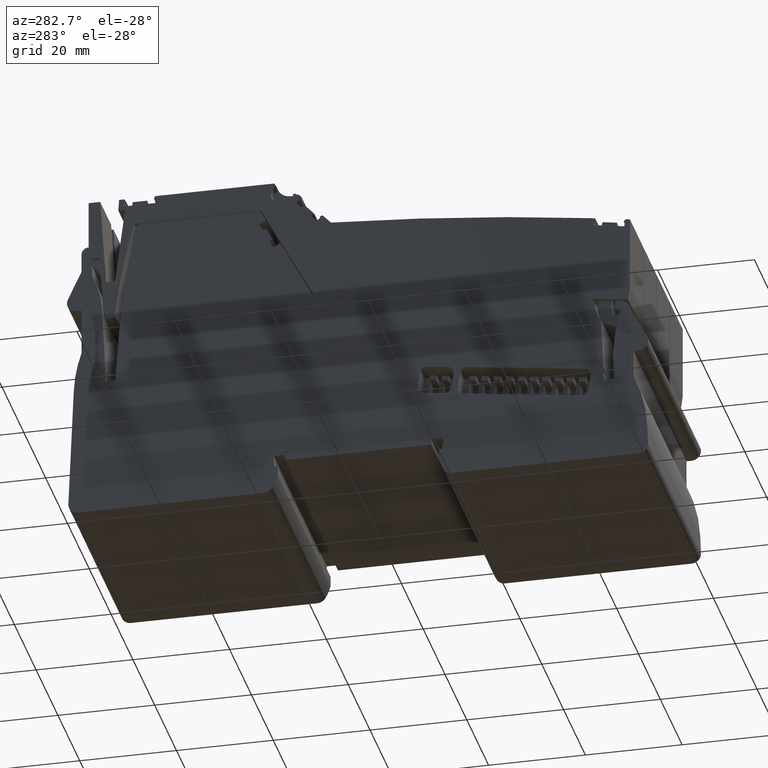
[diagram: clean part render]
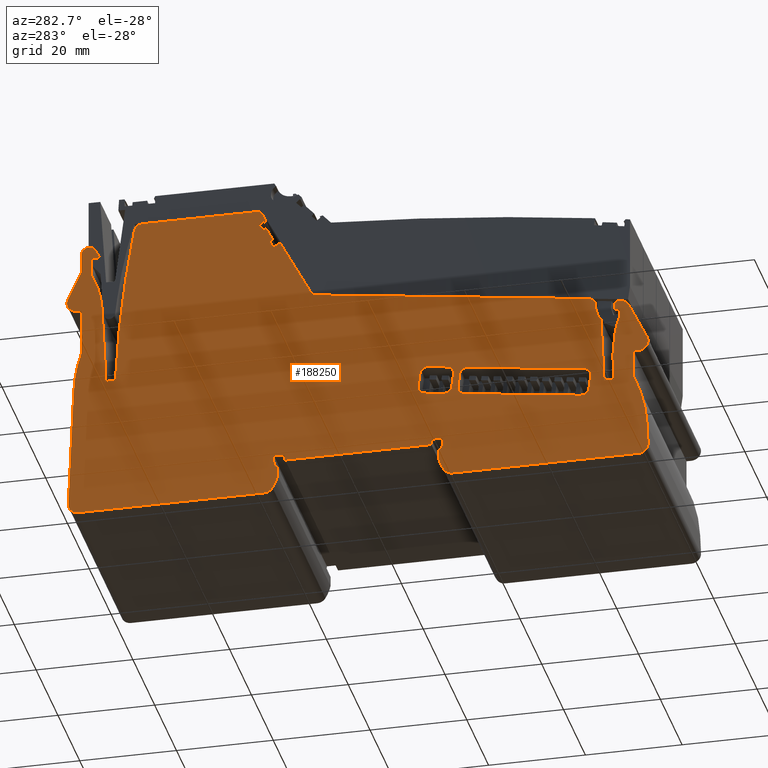
[diagram: same view with one face highlighted and labeled with its STEP entity id]
A machine part, auxiliary view. The second image highlights one B-rep face of the part: STEP entity #188250.
In plain terms, the highlighted planar face has unit normal (-1, 0, 0).
Its self-contained STEP definition (entity closure, byte-faithful):
#180370=CARTESIAN_POINT('',(207.521137303987,-49.7075260538664,-12.15));
#180380=DIRECTION('',(0.,0.,-1.));
#180390=DIRECTION('',(-1.,1.05193631583234E-14,0.));
#180400=AXIS2_PLACEMENT_3D('',#180370,#180380,#180390);
#180410=PLANE('',#180400);
#180420=CARTESIAN_POINT('',(0.,-73.3773829456078,-12.15));
#180430=DIRECTION('',(0.99144486137381,0.130526192220052,0.));
#180440=VECTOR('',#180430,1.);
#180450=LINE('',#180420,#180440);
#180460=CARTESIAN_POINT('',(190.538323415351,-48.2925367818617,-12.15));
#180470=VERTEX_POINT('',#180460);
#180480=CARTESIAN_POINT('',(214.630433546734,-45.1207503109144,-12.15));
#180490=VERTEX_POINT('',#180480);
#180500=EDGE_CURVE('',#180470,#180490,#180450,.T.);
#180510=ORIENTED_EDGE('',*,*,#180500,.T.);
#180520=CARTESIAN_POINT('',(190.342534127021,-46.805369489801,-12.15));
#180530=DIRECTION('',(0.,0.,-1.));
#180540=DIRECTION('',(-1.,0.,0.));
#180550=AXIS2_PLACEMENT_3D('',#180520,#180530,#180540);
#180560=CIRCLE('',#180550,1.5);
#180570=CARTESIAN_POINT('',(188.85536683496,-47.0011587781311,-12.15));
#180580=VERTEX_POINT('',#180570);
#180590=EDGE_CURVE('',#180470,#180580,#180560,.T.);
#180600=ORIENTED_EDGE('',*,*,#180590,.F.);
#180610=CARTESIAN_POINT('',(182.667546892317,0.,-12.15));
#180620=DIRECTION('',(0.130526192220058,-0.99144486137381,0.));
#180630=VECTOR('',#180620,1.);
#180640=LINE('',#180610,#180630);
#180650=CARTESIAN_POINT('',(188.4637882583,-44.0268241940091,-12.15));
#180660=VERTEX_POINT('',#180650);
#180670=EDGE_CURVE('',#180660,#180580,#180640,.T.);
#180680=ORIENTED_EDGE('',*,*,#180670,.T.);
#180690=CARTESIAN_POINT('',(189.95095555036,-43.831034905679,-12.15));
#180700=DIRECTION('',(0.,0.,-1.));
#180710=DIRECTION('',(-1.,0.,0.));
#180720=AXIS2_PLACEMENT_3D('',#180690,#180700,#180710);
#180730=CIRCLE('',#180720,1.5);
#180740=CARTESIAN_POINT('',(189.75516626203,-42.3438676136182,-12.15));
#180750=VERTEX_POINT('',#180740);
#180760=EDGE_CURVE('',#180660,#180750,#180730,.T.);
#180770=ORIENTED_EDGE('',*,*,#180760,.F.);
#180780=CARTESIAN_POINT('',(0.,-67.3256091821255,-12.15));
#180790=DIRECTION('',(-0.991444861373811,-0.130526192220049,0.));
#180800=VECTOR('',#180790,1.);
#180810=LINE('',#180780,#180800);
#180820=CARTESIAN_POINT('',(213.847276393414,-39.1720811426711,-12.15));
#180830=VERTEX_POINT('',#180820);
#180840=EDGE_CURVE('',#180830,#180750,#180810,.T.);
#180850=ORIENTED_EDGE('',*,*,#180840,.T.);
#180860=CARTESIAN_POINT('',(214.043065681744,-40.6592484347318,-12.15));
#180870=DIRECTION('',(0.,0.,-1.));
#180880=DIRECTION('',(-1.,0.,0.));
#180890=AXIS2_PLACEMENT_3D('',#180860,#180870,#180880);
#180900=CIRCLE('',#180890,1.5);
#180910=CARTESIAN_POINT('',(215.530232973805,-40.4634591464017,-12.15));
#180920=VERTEX_POINT('',#180910);
#180930=EDGE_CURVE('',#180830,#180920,#180900,.T.);
#180940=ORIENTED_EDGE('',*,*,#180930,.F.);
#180950=CARTESIAN_POINT('',(210.203117516155,0.,-12.15));
#180960=DIRECTION('',(-0.130526192220057,0.99144486137381,0.));
#180970=VECTOR('',#180960,1.);
#180980=LINE('',#180950,#180970);
#180990=CARTESIAN_POINT('',(215.921811550465,-43.4377937305236,-12.15));
#181000=VERTEX_POINT('',#180990);
#181010=EDGE_CURVE('',#181000,#180920,#180980,.T.);
#181020=ORIENTED_EDGE('',*,*,#181010,.T.);
#181030=CARTESIAN_POINT('',(214.434644258404,-43.6335830188537,-12.15));
#181040=DIRECTION('',(0.,0.,-1.));
#181050=DIRECTION('',(-1.,0.,0.));
#181060=AXIS2_PLACEMENT_3D('',#181030,#181040,#181050);
#181070=CIRCLE('',#181060,1.5);
#181080=EDGE_CURVE('',#181000,#180490,#181070,.T.);
#181090=ORIENTED_EDGE('',*,*,#181080,.F.);
#181100=EDGE_LOOP('',(#181090,#181020,#180940,#180850,#180770,#180680,
#180600,#180510));
#181110=FACE_BOUND('',#181100,.T.);
#181120=CARTESIAN_POINT('',(0.,-73.3773829456074,-12.15));
#181130=DIRECTION('',(0.99144486137381,0.130526192220051,0.));
#181140=VECTOR('',#181130,1.);
#181150=LINE('',#181120,#181140);
#181160=CARTESIAN_POINT('',(218.893646450642,-44.5594876843682,-12.15));
#181170=VERTEX_POINT('',#181160);
#181180=CARTESIAN_POINT('',(222.859425896137,-44.037382915488,-12.15));
#181190=VERTEX_POINT('',#181180);
#181200=EDGE_CURVE('',#181170,#181190,#181150,.T.);
#181210=ORIENTED_EDGE('',*,*,#181200,.T.);
#181220=CARTESIAN_POINT('',(218.697857162312,-43.0723203923074,-12.15));
#181230=DIRECTION('',(0.,0.,-1.));
#181240=DIRECTION('',(-1.,-1.05193631583234E-14,0.));
#181250=AXIS2_PLACEMENT_3D('',#181220,#181230,#181240);
#181260=CIRCLE('',#181250,1.5);
#181270=CARTESIAN_POINT('',(217.210689870251,-43.2681096806375,-12.15));
#181280=VERTEX_POINT('',#181270);
#181290=EDGE_CURVE('',#181170,#181280,#181260,.T.);
#181300=ORIENTED_EDGE('',*,*,#181290,.F.);
#181310=CARTESIAN_POINT('',(211.514335164909,0.,-12.15));
#181320=DIRECTION('',(0.130526192220052,-0.99144486137381,0.));
#181330=VECTOR('',#181320,1.);
#181340=LINE('',#181310,#181330);
#181350=CARTESIAN_POINT('',(216.819111293591,-40.2937750965157,-12.15));
#181360=VERTEX_POINT('',#181350);
#181370=EDGE_CURVE('',#181360,#181280,#181340,.T.);
#181380=ORIENTED_EDGE('',*,*,#181370,.T.);
#181390=CARTESIAN_POINT('',(218.306278585651,-40.0979858081856,-12.15));
#181400=DIRECTION('',(0.,0.,1.));
#181410=DIRECTION('',(1.,1.05193631583234E-14,0.));
#181420=AXIS2_PLACEMENT_3D('',#181390,#181400,#181410);
#181430=CIRCLE('',#181420,1.5);
#181440=CARTESIAN_POINT('',(218.110489297321,-38.6108185161249,-12.15));
#181450=VERTEX_POINT('',#181440);
#181460=EDGE_CURVE('',#181450,#181360,#181430,.T.);
#181470=ORIENTED_EDGE('',*,*,#181460,.T.);
#181480=CARTESIAN_POINT('',(0.,-67.3256091821258,-12.15));
#181490=DIRECTION('',(-0.991444861373811,-0.13052619222005,0.));
#181500=VECTOR('',#181490,1.);
#181510=LINE('',#181480,#181500);
#181520=CARTESIAN_POINT('',(222.076268742817,-38.0887137472446,-12.15));
#181530=VERTEX_POINT('',#181520);
#181540=EDGE_CURVE('',#181530,#181450,#181510,.T.);
#181550=ORIENTED_EDGE('',*,*,#181540,.T.);
#181560=CARTESIAN_POINT('',(222.272058031147,-39.5758810393054,-12.15));
#181570=DIRECTION('',(0.,0.,-1.));
#181580=DIRECTION('',(-1.,-1.05193631583234E-14,0.));
#181590=AXIS2_PLACEMENT_3D('',#181560,#181570,#181580);
#181600=CIRCLE('',#181590,1.5);
#181610=CARTESIAN_POINT('',(223.759225323207,-39.3800917509753,-12.15));
#181620=VERTEX_POINT('',#181610);
#181630=EDGE_CURVE('',#181530,#181620,#181600,.T.);
#181640=ORIENTED_EDGE('',*,*,#181630,.F.);
#181650=CARTESIAN_POINT('',(218.574737888971,0.,-12.15));
#181660=DIRECTION('',(-0.130526192220051,0.99144486137381,0.));
#181670=VECTOR('',#181660,1.);
#181680=LINE('',#181650,#181670);
#181690=CARTESIAN_POINT('',(224.150803899868,-42.3544263350972,-12.15));
#181700=VERTEX_POINT('',#181690);
#181710=EDGE_CURVE('',#181700,#181620,#181680,.T.);
#181720=ORIENTED_EDGE('',*,*,#181710,.T.);
#181730=CARTESIAN_POINT('',(222.663636607807,-42.5502156234272,-12.15));
#181740=DIRECTION('',(0.,0.,-1.));
#181750=DIRECTION('',(-1.,-1.05193631583234E-14,0.));
#181760=AXIS2_PLACEMENT_3D('',#181730,#181740,#181750);
#181770=CIRCLE('',#181760,1.5);
#181780=EDGE_CURVE('',#181700,#181190,#181770,.T.);
#181790=ORIENTED_EDGE('',*,*,#181780,.F.);
#181800=EDGE_LOOP('',(#181790,#181720,#181640,#181550,#181470,#181380,
#181300,#181210));
#181810=FACE_BOUND('',#181800,.T.);
#181820=CARTESIAN_POINT('',(182.478620208859,-36.561018757538,-12.15));
#181830=DIRECTION('',(1.05193631583234E-14,1.,0.));
#181840=VECTOR('',#181830,1.);
#181850=LINE('',#181820,#181840);
#181860=CARTESIAN_POINT('',(182.478620208859,-31.1739986024552,-12.15));
#181870=VERTEX_POINT('',#181860);
#181880=CARTESIAN_POINT('',(182.478620208859,-29.5542780967958,-12.15));
#181890=VERTEX_POINT('',#181880);
#181900=EDGE_CURVE('',#181870,#181890,#181850,.T.);
#181910=ORIENTED_EDGE('',*,*,#181900,.F.);
#181920=CARTESIAN_POINT('',(217.456642799386,-29.5542780967962,-12.15));
#181930=DIRECTION('',(1.,-1.05193631583234E-14,0.));
#181940=VECTOR('',#181930,1.);
#181950=LINE('',#181920,#181940);
#181960=CARTESIAN_POINT('',(183.478620208859,-29.5542780967958,-12.15));
#181970=VERTEX_POINT('',#181960);
#181980=EDGE_CURVE('',#181890,#181970,#181950,.T.);
#181990=ORIENTED_EDGE('',*,*,#181980,.F.);
#182000=CARTESIAN_POINT('',(183.478620208859,-36.561018757538,-12.15));
#182010=DIRECTION('',(1.05193631583234E-14,1.,0.));
#182020=VECTOR('',#182010,1.);
#182030=LINE('',#182000,#182020);
#182040=CARTESIAN_POINT('',(183.478620208859,-28.3478039592243,-12.15));
#182050=VERTEX_POINT('',#182040);
#182060=EDGE_CURVE('',#181970,#182050,#182030,.T.);
#182070=ORIENTED_EDGE('',*,*,#182060,.F.);
#182080=CARTESIAN_POINT('',(182.678620208859,-28.3478039592243,-12.15));
#182090=DIRECTION('',(0.,0.,1.));
#182100=DIRECTION('',(1.,-1.05193631583234E-14,0.));
#182110=AXIS2_PLACEMENT_3D('',#182080,#182090,#182100);
#182120=CIRCLE('',#182110,0.8);
#182130=CARTESIAN_POINT('',(182.574199255083,-27.5546480701252,-12.15));
#182140=VERTEX_POINT('',#182130);
#182150=EDGE_CURVE('',#182050,#182140,#182120,.T.);
#182160=ORIENTED_EDGE('',*,*,#182150,.F.);
#182170=CARTESIAN_POINT('',(217.456642799386,-22.9622872555671,-12.15));
#182180=DIRECTION('',(-0.991444861373813,-0.130526192220033,0.));
#182190=VECTOR('',#182180,1.);
#182200=LINE('',#182170,#182190);
#182210=CARTESIAN_POINT('',(182.452304728309,-27.5706957890172,-12.15));
#182220=VERTEX_POINT('',#182210);
#182230=EDGE_CURVE('',#182140,#182220,#182200,.T.);
#182240=ORIENTED_EDGE('',*,*,#182230,.F.);
#182250=CARTESIAN_POINT('',(182.77862020886,-30.0493079424523,-12.15));
#182260=DIRECTION('',(0.,0.,1.));
#182270=DIRECTION('',(1.,-1.05193631583234E-14,0.));
#182280=AXIS2_PLACEMENT_3D('',#182250,#182260,#182270);
#182290=CIRCLE('',#182280,2.50000000000061);
#182300=CARTESIAN_POINT('',(180.530802423075,-28.9550889507,-12.15));
#182310=VERTEX_POINT('',#182300);
#182320=EDGE_CURVE('',#182220,#182310,#182290,.T.);
#182330=ORIENTED_EDGE('',*,*,#182320,.F.);
#182340=CARTESIAN_POINT('',(176.828299089749,-36.5610187575379,-12.15));
#182350=DIRECTION('',(-0.437687596700834,-0.899127114313793,0.));
#182360=VECTOR('',#182350,1.);
#182370=LINE('',#182340,#182360);
#182380=CARTESIAN_POINT('',(176.81959323638,-36.578902903391,-12.15));
#182390=VERTEX_POINT('',#182380);
#182400=EDGE_CURVE('',#182310,#182390,#182370,.T.);
#182410=ORIENTED_EDGE('',*,*,#182400,.F.);
#182420=CARTESIAN_POINT('',(178.617847465008,-37.4542780967927,-12.15));
#182430=DIRECTION('',(0.,0.,1.));
#182440=DIRECTION('',(1.,-1.05193631583234E-14,0.));
#182450=AXIS2_PLACEMENT_3D('',#182420,#182430,#182440);
#182460=CIRCLE('',#182450,2.);
#182470=CARTESIAN_POINT('',(178.617847465007,-39.4542780967927,-12.15));
#182480=VERTEX_POINT('',#182470);
#182490=EDGE_CURVE('',#182390,#182480,#182460,.T.);
#182500=ORIENTED_EDGE('',*,*,#182490,.F.);
#182510=CARTESIAN_POINT('',(217.456642799386,-39.4542780967931,-12.15));
#182520=DIRECTION('',(1.,-1.05193631583234E-14,0.));
#182530=VECTOR('',#182520,1.);
#182540=LINE('',#182510,#182530);
#182550=CARTESIAN_POINT('',(179.617847465003,-39.4542780967927,-12.15));
#182560=VERTEX_POINT('',#182550);
#182570=EDGE_CURVE('',#182480,#182560,#182540,.T.);
#182580=ORIENTED_EDGE('',*,*,#182570,.F.);
#182590=CARTESIAN_POINT('',(179.617847465003,-36.5610187575379,-12.15));
#182600=DIRECTION('',(-1.05193631583234E-14,-1.,0.));
#182610=VECTOR('',#182600,1.);
#182620=LINE('',#182590,#182610);
#182630=CARTESIAN_POINT('',(179.617847465003,-45.2366806104568,-12.15));
#182640=VERTEX_POINT('',#182630);
#182650=EDGE_CURVE('',#182560,#182640,#182620,.T.);
#182660=ORIENTED_EDGE('',*,*,#182650,.F.);
#182670=CARTESIAN_POINT('',(206.774136155416,-57.9856407469761,-12.15));
#182680=DIRECTION('',(0.,0.,1.));
#182690=DIRECTION('',(1.,-1.05193631583234E-14,0.));
#182700=AXIS2_PLACEMENT_3D('',#182670,#182680,#182690);
#182710=CIRCLE('',#182700,29.9999999999933);
#182720=CARTESIAN_POINT('',(176.802689507967,-56.6770591260167,-12.15));
#182730=VERTEX_POINT('',#182720);
#182740=EDGE_CURVE('',#182640,#182730,#182710,.T.);
#182750=ORIENTED_EDGE('',*,*,#182740,.F.);
#182760=CARTESIAN_POINT('',(177.680974798041,-36.5610187575379,-12.15));
#182770=DIRECTION('',(-0.0436193873653932,-0.999048221581855,0.));
#182780=VECTOR('',#182770,1.);
#182790=LINE('',#182760,#182780);
#182800=CARTESIAN_POINT('',(176.619751021839,-60.8670393220623,-12.15));
#182810=VERTEX_POINT('',#182800);
#182820=EDGE_CURVE('',#182730,#182810,#182790,.T.);
#182830=ORIENTED_EDGE('',*,*,#182820,.F.);
#182840=CARTESIAN_POINT('',(178.617847465003,-60.9542780967931,-12.15));
#182850=DIRECTION('',(0.,0.,-1.));
#182860=DIRECTION('',(-1.,1.57772181044202E-30,0.));
#182870=AXIS2_PLACEMENT_3D('',#182840,#182850,#182860);
#182880=CIRCLE('',#182870,2.);
#182890=CARTESIAN_POINT('',(178.617847465003,-62.9542780967927,-12.15));
#182900=VERTEX_POINT('',#182890);
#182910=EDGE_CURVE('',#182900,#182810,#182880,.T.);
#182920=ORIENTED_EDGE('',*,*,#182910,.T.);
#182930=CARTESIAN_POINT('',(217.456642799385,-62.9542780967931,-12.15));
#182940=DIRECTION('',(-1.,1.05193631583234E-14,0.));
#182950=VECTOR('',#182940,1.);
#182960=LINE('',#182930,#182950);
#182970=CARTESIAN_POINT('',(217.09468547299,-62.9542780967931,-12.15));
#182980=VERTEX_POINT('',#182970);
#182990=EDGE_CURVE('',#182980,#182900,#182960,.T.);
#183000=ORIENTED_EDGE('',*,*,#182990,.T.);
#183010=CARTESIAN_POINT('',(217.09468547299,-60.9542780967931,-12.15));
#183020=DIRECTION('',(0.,0.,-1.));
#183030=DIRECTION('',(-1.,1.05193631583234E-14,0.));
#183040=AXIS2_PLACEMENT_3D('',#183010,#183020,#183030);
#183050=CIRCLE('',#183040,2.);
#183060=CARTESIAN_POINT('',(218.818969543425,-61.9676114301263,-12.15));
#183070=VERTEX_POINT('',#183060);
#183080=EDGE_CURVE('',#183070,#182980,#183050,.T.);
#183090=ORIENTED_EDGE('',*,*,#183080,.T.);
#183100=CARTESIAN_POINT('',(210.628620208859,-57.1542780967933,-12.15));
#183110=DIRECTION('',(0.,0.,-1.));
#183120=DIRECTION('',(-1.,1.05193631583234E-14,0.));
#183130=AXIS2_PLACEMENT_3D('',#183100,#183110,#183120);
#183140=CIRCLE('',#183130,9.49999999999997);
#183150=CARTESIAN_POINT('',(219.878620208859,-59.3193416062545,-12.15));
#183160=VERTEX_POINT('',#183150);
#183170=EDGE_CURVE('',#183160,#183070,#183140,.T.);
#183180=ORIENTED_EDGE('',*,*,#183170,.T.);
#183190=CARTESIAN_POINT('',(219.878620208859,-36.5610187575384,-12.15));
#183200=DIRECTION('',(-1.01399730413202E-14,-1.,0.));
#183210=VECTOR('',#183200,1.);
#183220=LINE('',#183190,#183210);
#183230=CARTESIAN_POINT('',(219.878620208859,-57.270906282276,-12.15));
#183240=VERTEX_POINT('',#183230);
#183250=EDGE_CURVE('',#183240,#183160,#183220,.T.);
#183260=ORIENTED_EDGE('',*,*,#183250,.T.);
#183270=CARTESIAN_POINT('',(217.456642799386,-56.8001215646978,-12.15));
#183280=DIRECTION('',(0.981627183447657,-0.190808995376581,0.));
#183290=VECTOR('',#183280,1.);
#183300=LINE('',#183270,#183290);
#183310=CARTESIAN_POINT('',(219.278620208859,-57.1542780967934,-12.15));
#183320=VERTEX_POINT('',#183310);
#183330=EDGE_CURVE('',#183320,#183240,#183300,.T.);
#183340=ORIENTED_EDGE('',*,*,#183330,.T.);
#183350=CARTESIAN_POINT('',(209.200778917477,-1.4210854715202E-14,-12.15
));
#183360=DIRECTION('',(-0.173648177666981,0.984807753012199,0.));
#183370=VECTOR('',#183360,1.);
#183380=LINE('',#183350,#183370);
#183390=CARTESIAN_POINT('',(219.03106719151,-55.7503351701112,-12.15));
#183400=VERTEX_POINT('',#183390);
#183410=EDGE_CURVE('',#183320,#183400,#183380,.T.);
#183420=ORIENTED_EDGE('',*,*,#183410,.F.);
#183430=CARTESIAN_POINT('',(227.528620208859,-55.9542780967937,-12.15));
#183440=DIRECTION('',(0.,0.,1.));
#183450=DIRECTION('',(1.,-1.57772181044202E-30,0.));
#183460=AXIS2_PLACEMENT_3D('',#183430,#183440,#183450);
#183470=CIRCLE('',#183460,8.49999999999999);
#183480=CARTESIAN_POINT('',(219.113752414295,-54.7542780967939,-12.15));
#183490=VERTEX_POINT('',#183480);
#183500=EDGE_CURVE('',#183490,#183400,#183470,.T.);
#183510=ORIENTED_EDGE('',*,*,#183500,.T.);
#183520=CARTESIAN_POINT('',(217.456642799386,-54.7542780967939,-12.15));
#183530=DIRECTION('',(-1.,1.05193631583234E-14,0.));
#183540=VECTOR('',#183530,1.);
#183550=LINE('',#183520,#183540);
#183560=CARTESIAN_POINT('',(221.403620208859,-54.7542780967939,-12.15));
#183570=VERTEX_POINT('',#183560);
#183580=EDGE_CURVE('',#183570,#183490,#183550,.T.);
#183590=ORIENTED_EDGE('',*,*,#183580,.T.);
#183600=CARTESIAN_POINT('',(221.403620208859,-1.4210854715202E-14,-12.15
));
#183610=DIRECTION('',(1.57772181044202E-30,1.,0.));
#183620=VECTOR('',#183610,1.);
#183630=LINE('',#183600,#183620);
#183640=CARTESIAN_POINT('',(221.403620208859,-55.9542780967937,-12.15));
#183650=VERTEX_POINT('',#183640);
#183660=EDGE_CURVE('',#183650,#183570,#183630,.T.);
#183670=ORIENTED_EDGE('',*,*,#183660,.T.);
#183680=CARTESIAN_POINT('',(-2.8421709430404E-14,-55.9542780967937,
-12.15));
#183690=DIRECTION('',(-1.,1.57772181044202E-30,0.));
#183700=VECTOR('',#183690,1.);
#183710=LINE('',#183680,#183700);
#183720=CARTESIAN_POINT('',(251.653620208859,-55.9542780967937,-12.15));
#183730=VERTEX_POINT('',#183720);
#183740=EDGE_CURVE('',#183730,#183650,#183710,.T.);
#183750=ORIENTED_EDGE('',*,*,#183740,.T.);
#183760=CARTESIAN_POINT('',(251.653620208859,-1.4210854715202E-14,-12.15
));
#183770=DIRECTION('',(-1.57772181044202E-30,-1.,0.));
#183780=VECTOR('',#183770,1.);
#183790=LINE('',#183760,#183780);
#183800=CARTESIAN_POINT('',(251.653620208859,-54.7542780967942,-12.15));
#183810=VERTEX_POINT('',#183800);
#183820=EDGE_CURVE('',#183810,#183730,#183790,.T.);
#183830=ORIENTED_EDGE('',*,*,#183820,.T.);
#183840=CARTESIAN_POINT('',(217.456642799386,-54.7542780967939,-12.15));
#183850=DIRECTION('',(-1.,1.05193631583234E-14,0.));
#183860=VECTOR('',#183850,1.);
#183870=LINE('',#183840,#183860);
#183880=CARTESIAN_POINT('',(253.943488003424,-54.7542780967943,-12.15));
#183890=VERTEX_POINT('',#183880);
#183900=EDGE_CURVE('',#183890,#183810,#183870,.T.);
#183910=ORIENTED_EDGE('',*,*,#183900,.T.);
#183920=CARTESIAN_POINT('',(245.528620208859,-55.9542780967937,-12.15));
#183930=DIRECTION('',(0.,0.,1.));
#183940=DIRECTION('',(1.,-1.57772181044202E-30,0.));
#183950=AXIS2_PLACEMENT_3D('',#183920,#183930,#183940);
#183960=CIRCLE('',#183950,8.50000000000005);
#183970=CARTESIAN_POINT('',(254.026173226208,-55.7503351701111,-12.15));
#183980=VERTEX_POINT('',#183970);
#183990=EDGE_CURVE('',#183980,#183890,#183960,.T.);
#184000=ORIENTED_EDGE('',*,*,#183990,.T.);
#184010=CARTESIAN_POINT('',(263.856461500241,-1.4210854715202E-14,-12.15
));
#184020=DIRECTION('',(-0.17364817766696,-0.984807753012203,0.));
#184030=VECTOR('',#184020,1.);
#184040=LINE('',#184010,#184030);
#184050=CARTESIAN_POINT('',(253.778620208859,-57.1542780967937,-12.15));
#184060=VERTEX_POINT('',#184050);
#184070=EDGE_CURVE('',#183980,#184060,#184040,.T.);
#184080=ORIENTED_EDGE('',*,*,#184070,.F.);
#184090=CARTESIAN_POINT('',(217.456642799385,-64.2145552941411,-12.15));
#184100=DIRECTION('',(0.981627183447661,0.190808995376561,0.));
#184110=VECTOR('',#184100,1.);
#184120=LINE('',#184090,#184110);
#184130=CARTESIAN_POINT('',(253.178620208859,-57.2709062822764,-12.15));
#184140=VERTEX_POINT('',#184130);
#184150=EDGE_CURVE('',#184140,#184060,#184120,.T.);
#184160=ORIENTED_EDGE('',*,*,#184150,.T.);
#184170=CARTESIAN_POINT('',(253.17862020886,-36.5610187575387,-12.15));
#184180=DIRECTION('',(1.08987532753265E-14,1.,0.));
#184190=VECTOR('',#184180,1.);
#184200=LINE('',#184170,#184190);
#184210=CARTESIAN_POINT('',(253.178620208859,-59.3193416062554,-12.15));
#184220=VERTEX_POINT('',#184210);
#184230=EDGE_CURVE('',#184220,#184140,#184200,.T.);
#184240=ORIENTED_EDGE('',*,*,#184230,.T.);
#184250=CARTESIAN_POINT('',(262.428620208859,-57.1542780967938,-12.15));
#184260=DIRECTION('',(0.,0.,1.));
#184270=DIRECTION('',(1.,-1.05193631583234E-14,0.));
#184280=AXIS2_PLACEMENT_3D('',#184250,#184260,#184270);
#184290=CIRCLE('',#184280,9.49999999999997);
#184300=CARTESIAN_POINT('',(254.238270874293,-61.9676114301267,-12.15));
#184310=VERTEX_POINT('',#184300);
#184320=EDGE_CURVE('',#184220,#184310,#184290,.T.);
#184330=ORIENTED_EDGE('',*,*,#184320,.F.);
#184340=CARTESIAN_POINT('',(255.962554944728,-60.9542780967935,-12.15));
#184350=DIRECTION('',(0.,0.,-1.));
#184360=DIRECTION('',(-1.,1.05193631583234E-14,0.));
#184370=AXIS2_PLACEMENT_3D('',#184340,#184350,#184360);
#184380=CIRCLE('',#184370,2.);
#184390=CARTESIAN_POINT('',(255.962554944728,-62.9542780967935,-12.15));
#184400=VERTEX_POINT('',#184390);
#184410=EDGE_CURVE('',#184400,#184310,#184380,.T.);
#184420=ORIENTED_EDGE('',*,*,#184410,.T.);
#184430=CARTESIAN_POINT('',(217.456642799385,-62.9542780967931,-12.15));
#184440=DIRECTION('',(-1.,1.05193631583234E-14,0.));
#184450=VECTOR('',#184440,1.);
#184460=LINE('',#184430,#184450);
#184470=CARTESIAN_POINT('',(294.439392952715,-62.9542780967939,-12.15));
#184480=VERTEX_POINT('',#184470);
#184490=EDGE_CURVE('',#184480,#184400,#184460,.T.);
#184500=ORIENTED_EDGE('',*,*,#184490,.T.);
#184510=CARTESIAN_POINT('',(294.439392952716,-60.9542780967939,-12.15));
#184520=DIRECTION('',(0.,0.,-1.));
#184530=DIRECTION('',(-1.,1.05193631583234E-14,0.));
#184540=AXIS2_PLACEMENT_3D('',#184510,#184520,#184530);
#184550=CIRCLE('',#184540,2.);
#184560=CARTESIAN_POINT('',(296.437489395879,-60.8670393220635,-12.15));
#184570=VERTEX_POINT('',#184560);
#184580=EDGE_CURVE('',#184570,#184480,#184550,.T.);
#184590=ORIENTED_EDGE('',*,*,#184580,.T.);
#184600=CARTESIAN_POINT('',(295.376265619679,-36.5610187575392,-12.15));
#184610=DIRECTION('',(-0.0436193873653252,0.999048221581858,0.));
#184620=VECTOR('',#184610,1.);
#184630=LINE('',#184600,#184620);
#184640=CARTESIAN_POINT('',(295.310352033684,-35.0513494374696,-12.15));
#184650=VERTEX_POINT('',#184640);
#184660=EDGE_CURVE('',#184570,#184650,#184630,.T.);
#184670=ORIENTED_EDGE('',*,*,#184660,.F.);
#184680=CARTESIAN_POINT('',(265.338905386256,-36.3599310584231,-12.15));
#184690=DIRECTION('',(0.,0.,1.));
#184700=DIRECTION('',(1.,-1.05193631583234E-14,0.));
#184710=AXIS2_PLACEMENT_3D('',#184680,#184690,#184700);
#184720=CIRCLE('',#184710,29.9999999999717);
#184730=CARTESIAN_POINT('',(293.72862020886,-26.6633289582249,-12.15));
#184740=VERTEX_POINT('',#184730);
#184750=EDGE_CURVE('',#184650,#184740,#184720,.T.);
#184760=ORIENTED_EDGE('',*,*,#184750,.F.);
#184770=CARTESIAN_POINT('',(293.728620208859,-36.5610187575391,-12.15));
#184780=DIRECTION('',(1.05193631583234E-14,1.,0.));
#184790=VECTOR('',#184780,1.);
#184800=LINE('',#184770,#184790);
#184810=CARTESIAN_POINT('',(293.72862020886,-16.954278096794,-12.15));
#184820=VERTEX_POINT('',#184810);
#184830=EDGE_CURVE('',#184740,#184820,#184800,.T.);
#184840=ORIENTED_EDGE('',*,*,#184830,.F.);
#184850=CARTESIAN_POINT('',(217.456642799386,-16.9542780967932,-12.15));
#184860=DIRECTION('',(1.,-1.05193631583234E-14,0.));
#184870=VECTOR('',#184860,1.);
#184880=LINE('',#184850,#184870);
#184890=CARTESIAN_POINT('',(294.72862020886,-16.954278096794,-12.15));
#184900=VERTEX_POINT('',#184890);
#184910=EDGE_CURVE('',#184820,#184900,#184880,.T.);
#184920=ORIENTED_EDGE('',*,*,#184910,.F.);
#184930=CARTESIAN_POINT('',(294.72862020886,-14.954278096794,-12.15));
#184940=DIRECTION('',(0.,0.,1.));
#184950=DIRECTION('',(1.,-1.05193631583234E-14,0.));
#184960=AXIS2_PLACEMENT_3D('',#184930,#184940,#184950);
#184970=CIRCLE('',#184960,2.);
#184980=CARTESIAN_POINT('',(296.541235782933,-14.1090415733126,-12.15));
#184990=VERTEX_POINT('',#184980);
#185000=EDGE_CURVE('',#184900,#184990,#184970,.T.);
#185010=ORIENTED_EDGE('',*,*,#185000,.F.);
#185020=CARTESIAN_POINT('',(307.010764684658,-36.5610187575393,-12.15));
#185030=DIRECTION('',(-0.422618261740675,0.906307787036661,0.));
#185040=VECTOR('',#185030,1.);
#185050=LINE('',#185020,#185040);
#185060=CARTESIAN_POINT('',(293.72862020886,-8.07736800997932,-12.15));
#185070=VERTEX_POINT('',#185060);
#185080=EDGE_CURVE('',#184990,#185070,#185050,.T.);
#185090=ORIENTED_EDGE('',*,*,#185080,.F.);
#185100=CARTESIAN_POINT('',(293.728620208859,-36.5610187575391,-12.15));
#185110=DIRECTION('',(1.05193631583234E-14,1.,0.));
#185120=VECTOR('',#185110,1.);
#185130=LINE('',#185100,#185120);
#185140=CARTESIAN_POINT('',(293.72862020886,-4.14411839790047,-12.15));
#185150=VERTEX_POINT('',#185140);
#185160=EDGE_CURVE('',#185070,#185150,#185130,.T.);
#185170=ORIENTED_EDGE('',*,*,#185160,.F.);
#185180=CARTESIAN_POINT('',(292.238779907753,-4.14411839790046,-12.15));
#185190=DIRECTION('',(0.,0.,1.));
#185200=DIRECTION('',(1.,-1.05193631583234E-14,0.));
#185210=AXIS2_PLACEMENT_3D('',#185180,#185190,#185200);
#185220=CIRCLE('',#185210,1.4898403011067);
#185230=CARTESIAN_POINT('',(290.948540359413,-3.39919824734696,-12.15));
#185240=VERTEX_POINT('',#185230);
#185250=EDGE_CURVE('',#185150,#185240,#185220,.T.);
#185260=ORIENTED_EDGE('',*,*,#185250,.F.);
#185270=CARTESIAN_POINT('',(271.80255436103,-36.5610187575389,-12.15));
#185280=DIRECTION('',(0.5000000000001,0.866025403784381,0.));
#185290=VECTOR('',#185280,1.);
#185300=LINE('',#185270,#185290);
#185310=CARTESIAN_POINT('',(290.166184643561,-4.75427809679374,-12.15));
#185320=VERTEX_POINT('',#185310);
#185330=EDGE_CURVE('',#185320,#185240,#185300,.T.);
#185340=ORIENTED_EDGE('',*,*,#185330,.T.);
#185350=CARTESIAN_POINT('',(290.512594805075,-4.95427809679376,-12.15));
#185360=DIRECTION('',(0.,0.,1.));
#185370=DIRECTION('',(1.,-1.05193631583234E-14,0.));
#185380=AXIS2_PLACEMENT_3D('',#185350,#185360,#185370);
#185390=CIRCLE('',#185380,0.4);
#185400=CARTESIAN_POINT('',(290.512594805075,-5.35427809679376,-12.15));
#185410=VERTEX_POINT('',#185400);
#185420=EDGE_CURVE('',#185320,#185410,#185390,.T.);
#185430=ORIENTED_EDGE('',*,*,#185420,.F.);
#185440=CARTESIAN_POINT('',(217.456642799386,-5.35427809679299,-12.15));
#185450=DIRECTION('',(-1.,1.05193631583234E-14,0.));
#185460=VECTOR('',#185450,1.);
#185470=LINE('',#185440,#185460);
#185480=CARTESIAN_POINT('',(291.578620208859,-5.35427809679377,-12.15));
#185490=VERTEX_POINT('',#185480);
#185500=EDGE_CURVE('',#185490,#185410,#185470,.T.);
#185510=ORIENTED_EDGE('',*,*,#185500,.T.);
#185520=CARTESIAN_POINT('',(291.578620208859,-36.5610187575391,-12.15));
#185530=DIRECTION('',(1.05193631583234E-14,1.,0.));
#185540=VECTOR('',#185530,1.);
#185550=LINE('',#185520,#185540);
#185560=CARTESIAN_POINT('',(291.578620208859,-9.340130458479,-12.15));
#185570=VERTEX_POINT('',#185560);
#185580=EDGE_CURVE('',#185570,#185490,#185550,.T.);
#185590=ORIENTED_EDGE('',*,*,#185580,.T.);
#185600=CARTESIAN_POINT('',(306.174873430273,-17.4542780967937,-12.15));
#185610=DIRECTION('',(0.,0.,1.));
#185620=DIRECTION('',(1.,-1.05193631583234E-14,0.));
#185630=AXIS2_PLACEMENT_3D('',#185600,#185610,#185620);
#185640=CIRCLE('',#185630,16.6999999999999);
#185650=CARTESIAN_POINT('',(289.495566915127,-16.6231739072982,-12.15));
#185660=VERTEX_POINT('',#185650);
#185670=EDGE_CURVE('',#185570,#185660,#185640,.T.);
#185680=ORIENTED_EDGE('',*,*,#185670,.F.);
#185690=CARTESIAN_POINT('',(288.502094772295,-36.5610187575391,-12.15));
#185700=DIRECTION('',(0.0497667179338691,0.998760869170439,0.));
#185710=VECTOR('',#185700,1.);
#185720=LINE('',#185690,#185710);
#185730=CARTESIAN_POINT('',(288.781470035788,-30.9542780968104,-12.15));
#185740=VERTEX_POINT('',#185730);
#185750=EDGE_CURVE('',#185740,#185660,#185720,.T.);
#185760=ORIENTED_EDGE('',*,*,#185750,.T.);
#185770=CARTESIAN_POINT('',(289.026265619679,-36.5610187575391,-12.15));
#185780=DIRECTION('',(0.0436193873653688,-0.999048221581856,0.));
#185790=VECTOR('',#185780,1.);
#185800=LINE('',#185770,#185790);
#185810=CARTESIAN_POINT('',(288.89935458164,-33.6542780967937,-12.15));
#185820=VERTEX_POINT('',#185810);
#185830=EDGE_CURVE('',#185740,#185820,#185800,.T.);
#185840=ORIENTED_EDGE('',*,*,#185830,.F.);
#185850=CARTESIAN_POINT('',(217.456642799386,-33.6542780967937,-12.15));
#185860=DIRECTION('',(-1.,1.57772181044202E-30,0.));
#185870=VECTOR('',#185860,1.);
#185880=LINE('',#185850,#185870);
#185890=CARTESIAN_POINT('',(286.717034567894,-33.6542780967937,-12.15));
#185900=VERTEX_POINT('',#185890);
#185910=EDGE_CURVE('',#185820,#185900,#185880,.T.);
#185920=ORIENTED_EDGE('',*,*,#185910,.F.);
#185930=CARTESIAN_POINT('',(42.7786202088594,-44.954278096792,-12.15));
#185940=DIRECTION('',(0.,0.,1.));
#185950=DIRECTION('',(1.,-1.05193631583234E-14,0.));
#185960=AXIS2_PLACEMENT_3D('',#185930,#185940,#185950);
#185970=CIRCLE('',#185960,244.2);
#185980=CARTESIAN_POINT('',(282.794114182192,0.0590827279366124,-12.15))
;
#185990=VERTEX_POINT('',#185980);
#186000=EDGE_CURVE('',#185900,#185990,#185970,.T.);
#186010=ORIENTED_EDGE('',*,*,#186000,.F.);
#186020=CARTESIAN_POINT('',(281.123244650027,-0.25427809680555,-12.15));
#186030=DIRECTION('',(0.,0.,1.));
#186040=DIRECTION('',(1.,-1.05193631583234E-14,0.));
#186050=AXIS2_PLACEMENT_3D('',#186020,#186030,#186040);
#186060=CIRCLE('',#186050,1.7);
#186070=CARTESIAN_POINT('',(281.123244650027,1.44572190319445,-12.15));
#186080=VERTEX_POINT('',#186070);
#186090=EDGE_CURVE('',#185990,#186080,#186060,.T.);
#186100=ORIENTED_EDGE('',*,*,#186090,.F.);
#186110=CARTESIAN_POINT('',(-2.8421709430404E-14,1.44572190319741,-12.15
));
#186120=DIRECTION('',(1.,-1.05193631583234E-14,0.));
#186130=VECTOR('',#186120,1.);
#186140=LINE('',#186110,#186130);
#186150=CARTESIAN_POINT('',(257.379480827887,1.4457219031947,-12.15));
#186160=VERTEX_POINT('',#186150);
#186170=EDGE_CURVE('',#186160,#186080,#186140,.T.);
#186180=ORIENTED_EDGE('',*,*,#186170,.T.);
#186190=CARTESIAN_POINT('',(257.379480827887,0.445721903194581,-12.15));
#186200=DIRECTION('',(0.,0.,1.));
#186210=DIRECTION('',(1.,-1.57772181044202E-30,0.));
#186220=AXIS2_PLACEMENT_3D('',#186190,#186200,#186210);
#186230=CIRCLE('',#186220,1.0000000000001);
#186240=CARTESIAN_POINT('',(256.496533235028,0.91519346598043,-12.15));
#186250=VERTEX_POINT('',#186240);
#186260=EDGE_CURVE('',#186160,#186250,#186230,.T.);
#186270=ORIENTED_EDGE('',*,*,#186260,.F.);
#186280=CARTESIAN_POINT('',(256.009916237371,-1.4210854715202E-14,-12.15
));
#186290=DIRECTION('',(0.46947156278591,0.882947592858917,0.));
#186300=VECTOR('',#186290,1.);
#186310=LINE('',#186280,#186300);
#186320=CARTESIAN_POINT('',(255.62059243598,-0.732211576866504,-12.15));
#186330=VERTEX_POINT('',#186320);
#186340=EDGE_CURVE('',#186330,#186250,#186310,.T.);
#186350=ORIENTED_EDGE('',*,*,#186340,.T.);
#186360=CARTESIAN_POINT('',(255.163055862483,-1.4210854715202E-14,-12.15
));
#186370=DIRECTION('',(-0.529919264232787,0.848048096156687,0.));
#186380=VECTOR('',#186370,1.);
#186390=LINE('',#186360,#186380);
#186400=CARTESIAN_POINT('',(255.80722134419,-1.03088026279337,-12.15));
#186410=VERTEX_POINT('',#186400);
#186420=EDGE_CURVE('',#186410,#186330,#186390,.T.);
#186430=ORIENTED_EDGE('',*,*,#186420,.T.);
#186440=CARTESIAN_POINT('',(255.934428558614,-0.951392373158299,-12.15))
;
#186450=DIRECTION('',(0.,0.,1.));
#186460=DIRECTION('',(1.,-1.57772181044202E-30,0.));
#186470=AXIS2_PLACEMENT_3D('',#186440,#186450,#186460);
#186480=CIRCLE('',#186470,0.150000000000037);
#186490=CARTESIAN_POINT('',(256.066870697543,-1.02181310757619,-12.15));
#186500=VERTEX_POINT('',#186490);
#186510=EDGE_CURVE('',#186410,#186500,#186480,.T.);
#186520=ORIENTED_EDGE('',*,*,#186510,.F.);
#186530=CARTESIAN_POINT('',(256.610178364241,-1.4210854715202E-14,-12.15
));
#186540=DIRECTION('',(-0.469471562789102,-0.88294759285722,0.));
#186550=VECTOR('',#186540,1.);
#186560=LINE('',#186530,#186550);
#186570=CARTESIAN_POINT('',(256.072739092077,-1.01077626266552,-12.15));
#186580=VERTEX_POINT('',#186570);
#186590=EDGE_CURVE('',#186580,#186500,#186560,.T.);
#186600=ORIENTED_EDGE('',*,*,#186590,.T.);
#186610=CARTESIAN_POINT('',(-2.8421709430404E-14,135.145514303933,-12.15
));
#186620=DIRECTION('',(-0.882947592858995,0.469471562785762,0.));
#186630=VECTOR('',#186620,1.);
#186640=LINE('',#186610,#186630);
#186650=CARTESIAN_POINT('',(257.017493016437,-1.51311083484631,-12.15));
#186660=VERTEX_POINT('',#186650);
#186670=EDGE_CURVE('',#186660,#186580,#186640,.T.);
#186680=ORIENTED_EDGE('',*,*,#186670,.T.);
#186690=CARTESIAN_POINT('',(257.822028318474,-1.4210854715202E-14,-12.15
));
#186700=DIRECTION('',(0.469471562785973,0.882947592858883,0.));
#186710=VECTOR('',#186700,1.);
#186720=LINE('',#186690,#186710);
#186730=CARTESIAN_POINT('',(256.267801622998,-2.92307527932731,-12.15));
#186740=VERTEX_POINT('',#186730);
#186750=EDGE_CURVE('',#186740,#186660,#186720,.T.);
#186760=ORIENTED_EDGE('',*,*,#186750,.T.);
#186770=CARTESIAN_POINT('',(-2.8421709430404E-14,105.856152715035,-12.15
));
#186780=DIRECTION('',(0.92050485345244,-0.390731128489274,0.));
#186790=VECTOR('',#186780,1.);
#186800=LINE('',#186770,#186790);
#186810=CARTESIAN_POINT('',(255.574785848661,-2.62890753588488,-12.15));
#186820=VERTEX_POINT('',#186810);
#186830=EDGE_CURVE('',#186820,#186740,#186800,.T.);
#186840=ORIENTED_EDGE('',*,*,#186830,.T.);
#186850=CARTESIAN_POINT('',(256.972600780456,-1.4210854715202E-14,-12.15
));
#186860=DIRECTION('',(0.469471562785857,0.882947592858945,0.));
#186870=VECTOR('',#186860,1.);
#186880=LINE('',#186850,#186870);
#186890=CARTESIAN_POINT('',(254.166371160303,-5.2777503144617,-12.15));
#186900=VERTEX_POINT('',#186890);
#186910=EDGE_CURVE('',#186900,#186820,#186880,.T.);
#186920=ORIENTED_EDGE('',*,*,#186910,.T.);
#186930=CARTESIAN_POINT('',(-2.8421709430404E-14,159.779821052591,-12.15
));
#186940=DIRECTION('',(-0.838670567945281,0.544639035015247,0.));
#186950=VECTOR('',#186940,1.);
#186960=LINE('',#186930,#186950);
#186970=CARTESIAN_POINT('',(254.797776775253,-5.68778991519828,-12.15));
#186980=VERTEX_POINT('',#186970);
#186990=EDGE_CURVE('',#186980,#186900,#186960,.T.);
#187000=ORIENTED_EDGE('',*,*,#186990,.T.);
#187010=CARTESIAN_POINT('',(257.822028318475,-1.4210854715202E-14,-12.15
));
#187020=DIRECTION('',(0.469471562786064,0.882947592858835,0.));
#187030=VECTOR('',#187020,1.);
#187040=LINE('',#187010,#187030);
#187050=CARTESIAN_POINT('',(254.048085381815,-7.09775435967891,-12.15));
#187060=VERTEX_POINT('',#187050);
#187070=EDGE_CURVE('',#187060,#186980,#187040,.T.);
#187080=ORIENTED_EDGE('',*,*,#187070,.T.);
#187090=CARTESIAN_POINT('',(-2.8421709430404E-14,127.98200873337,-12.15)
);
#187100=DIRECTION('',(0.882947592858932,-0.469471562785882,0.));
#187110=VECTOR('',#187100,1.);
#187120=LINE('',#187090,#187110);
#187130=CARTESIAN_POINT('',(253.103331457457,-6.5954197874981,-12.15));
#187140=VERTEX_POINT('',#187130);
#187150=EDGE_CURVE('',#187140,#187060,#187120,.T.);
#187160=ORIENTED_EDGE('',*,*,#187150,.T.);
#187170=CARTESIAN_POINT('',(256.61017836425,-1.4210854715202E-14,-12.15)
);
#187180=DIRECTION('',(-0.469471562787351,-0.882947592858151,0.));
#187190=VECTOR('',#187180,1.);
#187200=LINE('',#187170,#187190);
#187210=CARTESIAN_POINT('',(253.109199851991,-6.58438294258743,-12.15));
#187220=VERTEX_POINT('',#187210);
#187230=EDGE_CURVE('',#187220,#187140,#187200,.T.);
#187240=ORIENTED_EDGE('',*,*,#187230,.T.);
#187250=CARTESIAN_POINT('',(252.976757713063,-6.51396220816953,-12.15));
#187260=DIRECTION('',(0.,0.,1.));
#187270=DIRECTION('',(1.,-1.57772181044202E-30,0.));
#187280=AXIS2_PLACEMENT_3D('',#187250,#187260,#187270);
#187290=CIRCLE('',#187280,0.149999999999978);
#187300=CARTESIAN_POINT('',(252.971522788557,-6.36405358411666,-12.15));
#187310=VERTEX_POINT('',#187300);
#187320=EDGE_CURVE('',#187220,#187310,#187290,.T.);
#187330=ORIENTED_EDGE('',*,*,#187320,.F.);
#187340=CARTESIAN_POINT('',(-2.8421709430404E-14,-15.1980138193775,
-12.15));
#187350=DIRECTION('',(0.999390827019098,0.0348994967024426,0.));
#187360=VECTOR('',#187350,1.);
#187370=LINE('',#187340,#187360);
#187380=CARTESIAN_POINT('',(252.619553665123,-6.37634461674429,-12.15));
#187390=VERTEX_POINT('',#187380);
#187400=EDGE_CURVE('',#187390,#187310,#187370,.T.);
#187410=ORIENTED_EDGE('',*,*,#187400,.T.);
#187420=CARTESIAN_POINT('',(256.009916237369,-1.4210854715202E-14,-12.15
));
#187430=DIRECTION('',(0.469471562785825,0.882947592858962,0.));
#187440=VECTOR('',#187430,1.);
#187450=LINE('',#187420,#187440);
#187460=CARTESIAN_POINT('',(245.956559916688,-18.9076132978665,-12.15));
#187470=VERTEX_POINT('',#187460);
#187480=EDGE_CURVE('',#187470,#187390,#187450,.T.);
#187490=ORIENTED_EDGE('',*,*,#187480,.T.);
#187500=CARTESIAN_POINT('',(-2.8421709430404E-14,-51.2884087088995,
-12.15));
#187510=DIRECTION('',(0.991444861373812,0.130526192220039,0.));
#187520=VECTOR('',#187510,1.);
#187530=LINE('',#187500,#187520);
#187540=CARTESIAN_POINT('',(188.956725682084,-26.411783836919,-12.15));
#187550=VERTEX_POINT('',#187540);
#187560=EDGE_CURVE('',#187550,#187470,#187530,.T.);
#187570=ORIENTED_EDGE('',*,*,#187560,.T.);
#187580=CARTESIAN_POINT('',(189.178620208858,-28.0972401012546,-12.15));
#187590=DIRECTION('',(0.,0.,-1.));
#187600=DIRECTION('',(-1.,1.57772181044202E-30,0.));
#187610=AXIS2_PLACEMENT_3D('',#187580,#187590,#187600);
#187620=CIRCLE('',#187610,1.7);
#187630=CARTESIAN_POINT('',(187.478620208858,-28.0972401012546,-12.15));
#187640=VERTEX_POINT('',#187630);
#187650=EDGE_CURVE('',#187640,#187550,#187620,.T.);
#187660=ORIENTED_EDGE('',*,*,#187650,.T.);
#187670=CARTESIAN_POINT('',(187.478620208858,-1.4210854715202E-14,-12.15
));
#187680=DIRECTION('',(-1.57772181044202E-30,-1.,0.));
#187690=VECTOR('',#187680,1.);
#187700=LINE('',#187670,#187690);
#187710=CARTESIAN_POINT('',(187.478620208858,-28.2732715626827,-12.15));
#187720=VERTEX_POINT('',#187710);
#187730=EDGE_CURVE('',#187640,#187720,#187700,.T.);
#187740=ORIENTED_EDGE('',*,*,#187730,.F.);
#187750=CARTESIAN_POINT('',(182.478620208859,-28.273271562683,-12.15));
#187760=DIRECTION('',(0.,0.,1.));
#187770=DIRECTION('',(1.,-1.57772181044202E-30,0.));
#187780=AXIS2_PLACEMENT_3D('',#187750,#187760,#187770);
#187790=CIRCLE('',#187780,4.99999999999888);
#187800=CARTESIAN_POINT('',(186.331435499459,-31.4600904054331,-12.15));
#187810=VERTEX_POINT('',#187800);
#187820=EDGE_CURVE('',#187810,#187720,#187790,.T.);
#187830=ORIENTED_EDGE('',*,*,#187820,.T.);
#187840=CARTESIAN_POINT('',(186.108724157897,-36.561018757538,-12.15));
#187850=DIRECTION('',(0.0436193873653873,0.999048221581856,0.));
#187860=VECTOR('',#187850,1.);
#187870=LINE('',#187840,#187860);
#187880=CARTESIAN_POINT('',(185.720436069615,-45.4542780967937,-12.15));
#187890=VERTEX_POINT('',#187880);
#187900=EDGE_CURVE('',#187890,#187810,#187870,.T.);
#187910=ORIENTED_EDGE('',*,*,#187900,.T.);
#187920=CARTESIAN_POINT('',(217.456642799386,-45.4542780967937,-12.15));
#187930=DIRECTION('',(1.,-1.57772181044202E-30,0.));
#187940=VECTOR('',#187930,1.);
#187950=LINE('',#187920,#187940);
#187960=CARTESIAN_POINT('',(183.642686709758,-45.4542780967937,-12.15));
#187970=VERTEX_POINT('',#187960);
#187980=EDGE_CURVE('',#187970,#187890,#187950,.T.);
#187990=ORIENTED_EDGE('',*,*,#187980,.T.);
#188000=CARTESIAN_POINT('',(184.03097479804,-36.561018757538,-12.15));
#188010=DIRECTION('',(0.0436193873653877,0.999048221581856,0.));
#188020=VECTOR('',#188010,1.);
#188030=LINE('',#188000,#188020);
#188040=CARTESIAN_POINT('',(183.886833925695,-39.8623875036672,-12.15));
#188050=VERTEX_POINT('',#188040);
#188060=EDGE_CURVE('',#187970,#188050,#188030,.T.);
#188070=ORIENTED_EDGE('',*,*,#188060,.F.);
#188080=CARTESIAN_POINT('',(183.59800158629,-36.561018757538,-12.15));
#188090=DIRECTION('',(0.0871557427476136,-0.996194698091749,0.));
#188100=VECTOR('',#188090,1.);
#188110=LINE('',#188080,#188100);
#188120=CARTESIAN_POINT('',(183.52256522417,-35.6987771929368,-12.15));
#188130=VERTEX_POINT('',#188120);
#188140=EDGE_CURVE('',#188130,#188050,#188110,.T.);
#188150=ORIENTED_EDGE('',*,*,#188140,.T.);
#188160=CARTESIAN_POINT('',(166.886113765894,-37.1542780968345,-12.15));
#188170=DIRECTION('',(0.,0.,1.));
#188180=DIRECTION('',(1.,-1.05193631583234E-14,0.));
#188190=AXIS2_PLACEMENT_3D('',#188160,#188170,#188180);
#188200=CIRCLE('',#188190,16.7000000001442);
#188210=EDGE_CURVE('',#188130,#181870,#188200,.T.);
#188220=ORIENTED_EDGE('',*,*,#188210,.F.);
#188230=EDGE_LOOP('',(#188220,#188150,#188070,#187990,#187910,#187830,
#187740,#187660,#187570,#187490,#187410,#187330,#187240,#187160,#187080,
#187000,#186920,#186840,#186760,#186680,#186600,#186520,#186430,#186350,
#186270,#186180,#186100,#186010,#185920,#185840,#185760,#185680,#185590,
#185510,#185430,#185340,#185260,#185170,#185090,#185010,#184920,#184840,
#184760,#184670,#184590,#184500,#184420,#184330,#184240,#184160,#184080,
#184000,#183910,#183830,#183750,#183670,#183590,#183510,#183420,#183340,
#183260,#183180,#183090,#183000,#182920,#182830,#182750,#182660,#182580,
#182500,#182410,#182330,#182240,#182160,#182070,#181990,#181910));
#188240=FACE_OUTER_BOUND('',#188230,.T.);
#188250=ADVANCED_FACE('',(#181110,#181810,#188240),#180410,.T.);